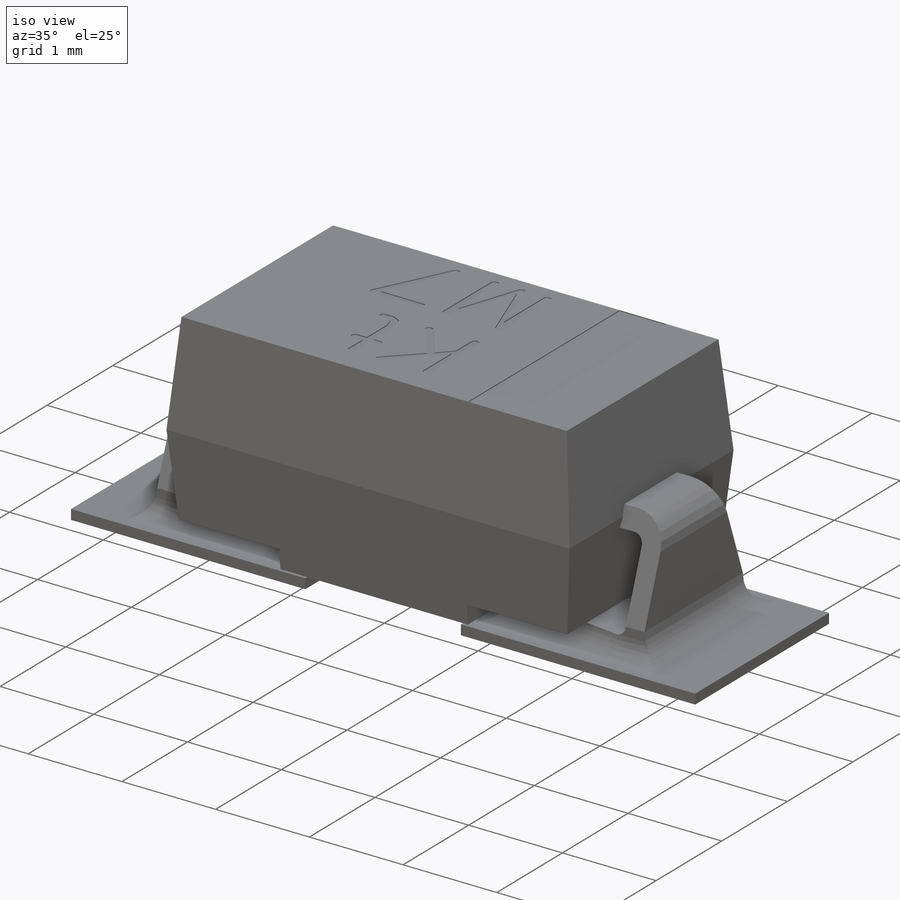
[diagram: iso view]
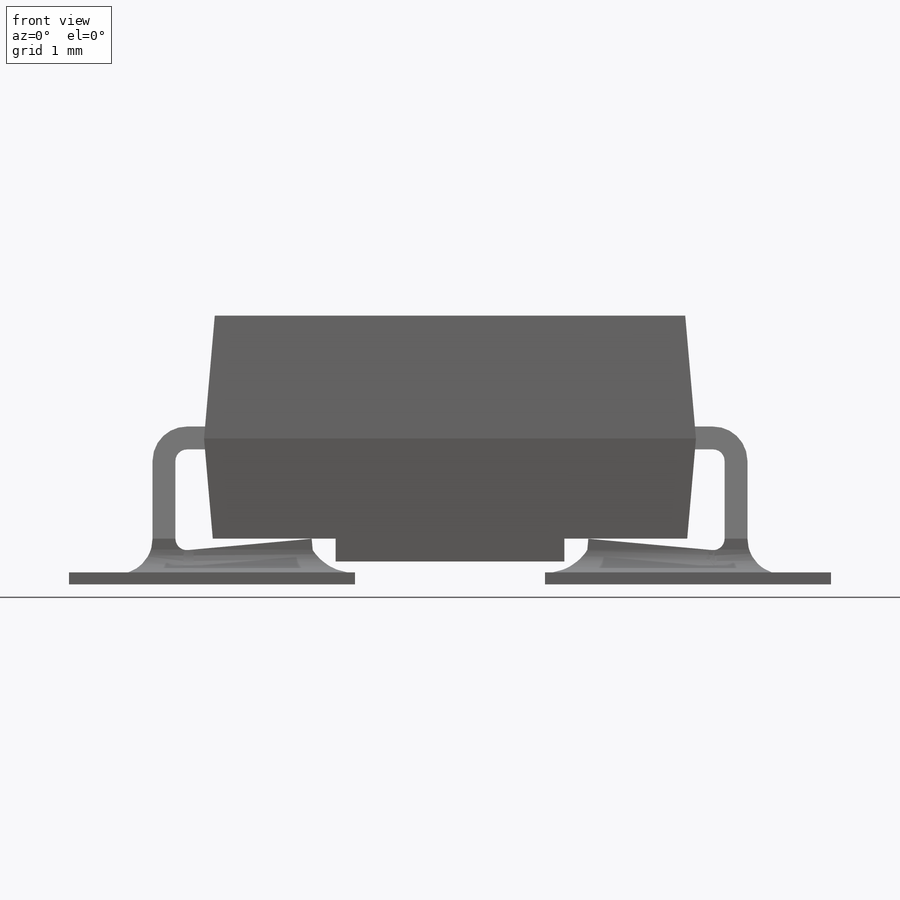
[diagram: front view]
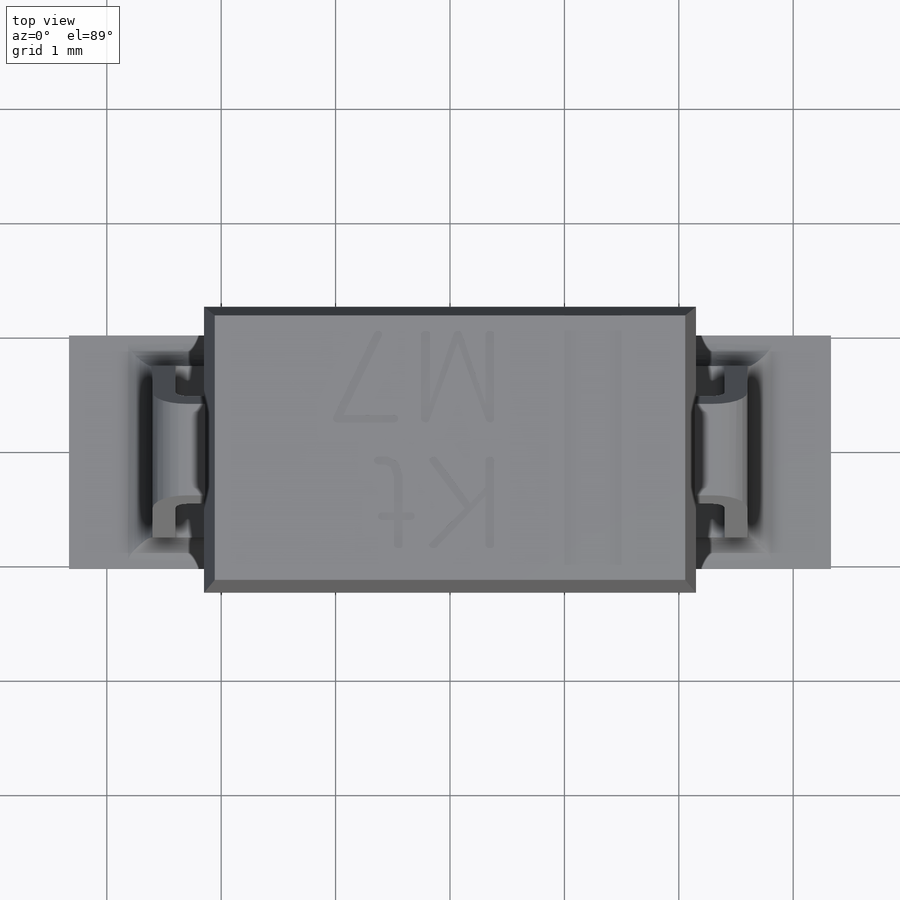
[diagram: top view]
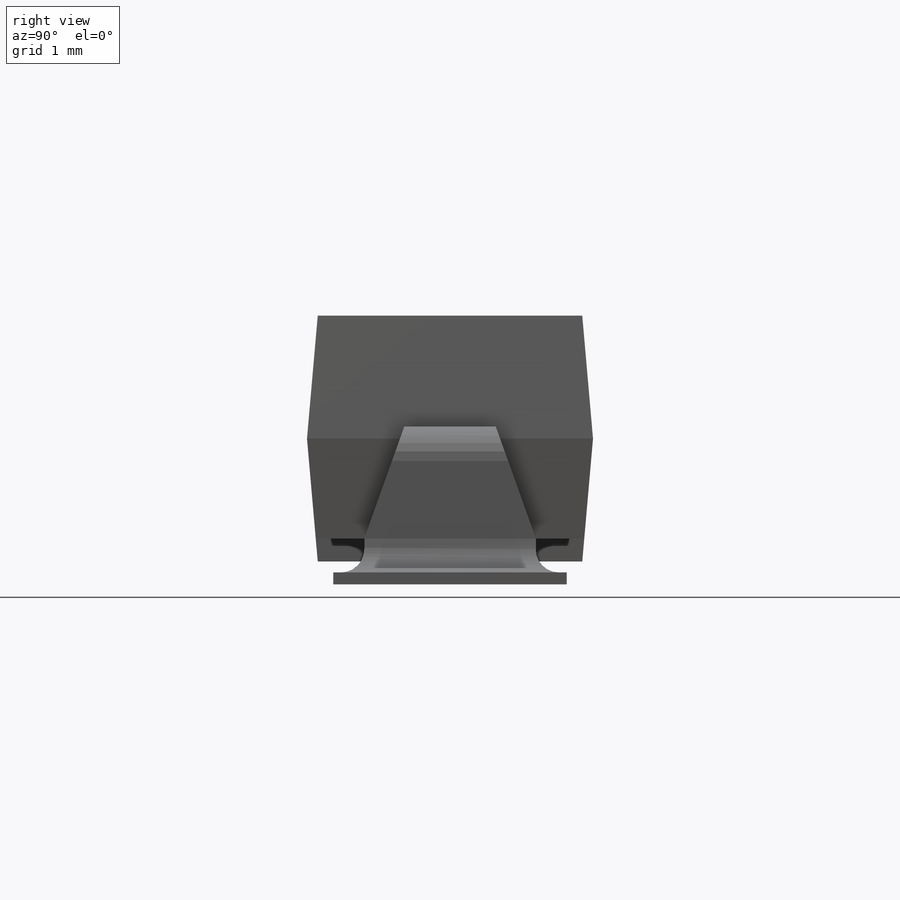
[diagram: right view]
SOLIDWORKS PART (.sldprt)
format: sldprt  version: not decoded by parser v0  size: 531,968 bytes
history: native  units: mm
features: sketch x9, cut_extrude x4, extrude x3, material x1, plane x1, sweep x1, fillet x1 (+11 scaffold rows collapsed)
feature tree (31):
  scaffold x11  (default folders/planes/origin — collapsed)
  material  "6063-O"
  sketch  "Sketch5"  dims[c1.D8=0.2mm c1.D1=5.0mm c1.D2=2.5mm c1.D3=1.28mm c1.D4=0.2mm c1.D5=0.3mm c1.D6=1.3mm c1.D7=1.3mm c2.D4=0.2mm c2.D1=2.0mm c2.D7=5.0mm c2.D9=1.3mm]
  plane  "Plane4"
  sketch  "Sketch10"  dims[D1=0.2mm D2=1.5mm]
  sketch  "Sketch2"  dims[c1.D1=0.1mm c1.D2=0.1mm c1.D3=1.075mm c2.D3=5.0deg c2.D4=1.075mm c3.D4=5.0deg c3.D5=0.2mm c3.D6=2.0mm c3.D7=1.0mm c3.D8=1.15mm c3.D1=1.275mm c3.D2=1.075mm c4.D2=5.0deg c4.D3=1.075mm c5.D3=5.0deg c5.D4=2.35mm c5.D8=4.3mm c5.D9=2.15mm c5.D10=0.2mm]
  sweep  "Sweep3"
  sketch  "Sketch14"  dims[D1=0.8mm D2=0.4mm]
  cut_extrude  "Cut-Extrude4"  [1 undecoded]
  extrude  "Boss-Extrude2"  Depth=2.5mm
  sketch  "Sketch1"  dims[c1.D1=2.5mm c1.D2=1.25mm c1.D3=1.125mm c1.D4=0.2mm c1.D5=2.35mm c1.D6=~2.31084mm c2.D3=1.275mm c2.D6=1.075mm c2.D7=1.075mm c3.D6=1.075mm c4.D6=5.0deg c4.D7=1.075mm c5.D7=5.0deg c5.D3=1.275mm c5.D4=0.1mm c5.D5=0.1mm]
  cut_extrude  "Cut-Extrude5"  [1 undecoded]
  sketch  "Sketch15"  dims[D1=0.83mm D2=0.83mm D3=2.5mm D4=2.04mm D5=1.02mm]
  extrude  "Boss-Extrude4"  Depth=0.105mm
  sketch  "Sketch16"  dims[c1.D4=~0.310652mm c1.D5=1.55mm c1.D6=1.55mm c1.D1=0.1mm c1.D2=0.83mm c1.D3=2.0mm c1.D7=0.1mm c2.D7=90.0deg c3.D7=0.1mm c3.D8=2.0mm c3.D9=0.83mm]
  extrude  "Boss-Extrude8"  Depth=1.5mm
  fillet  "Fillet2"  Radius=0.2mm
  sketch  "Sketch19"  dims[D1=0.5mm D2=1.5mm]
  cut_extrude  "Cut-Extrude6"  Depth=0.01mm
  sketch  "Sketch20"  dims[D1=0.5mm D2=0.5mm D3=0.1mm D4=1.0mm D5=1.8mm]
  cut_extrude  "Cut-Extrude7"  Depth=0.01mm
decode coverage: 15 of 18 modeling features carry decoded parameters
note: ~ marks probable driven/reference dimensions
note: 2 parameter values undecoded
note: suppression state not decoded; provenance and decode notes live in map.json
